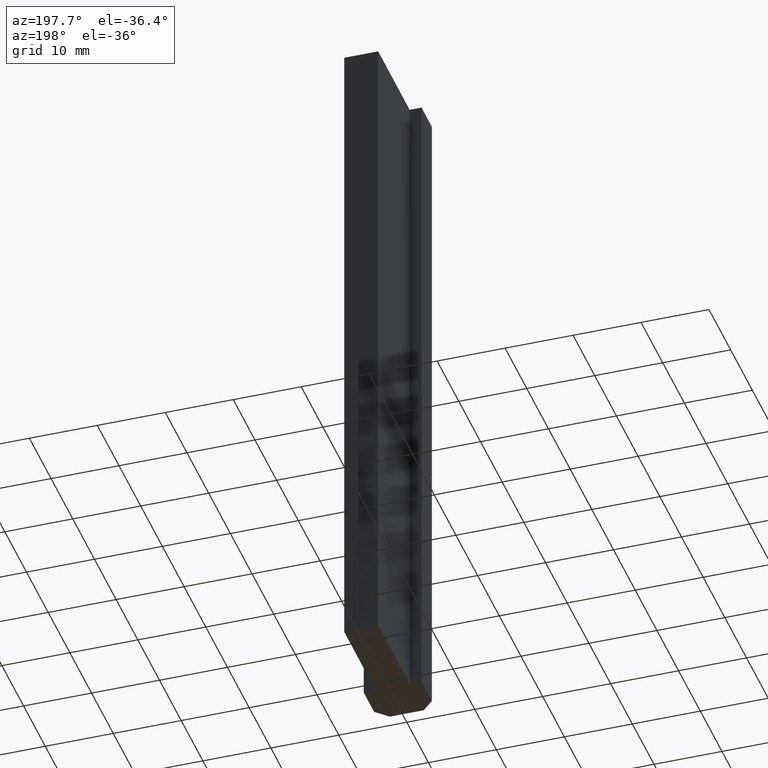
[diagram: clean part render]
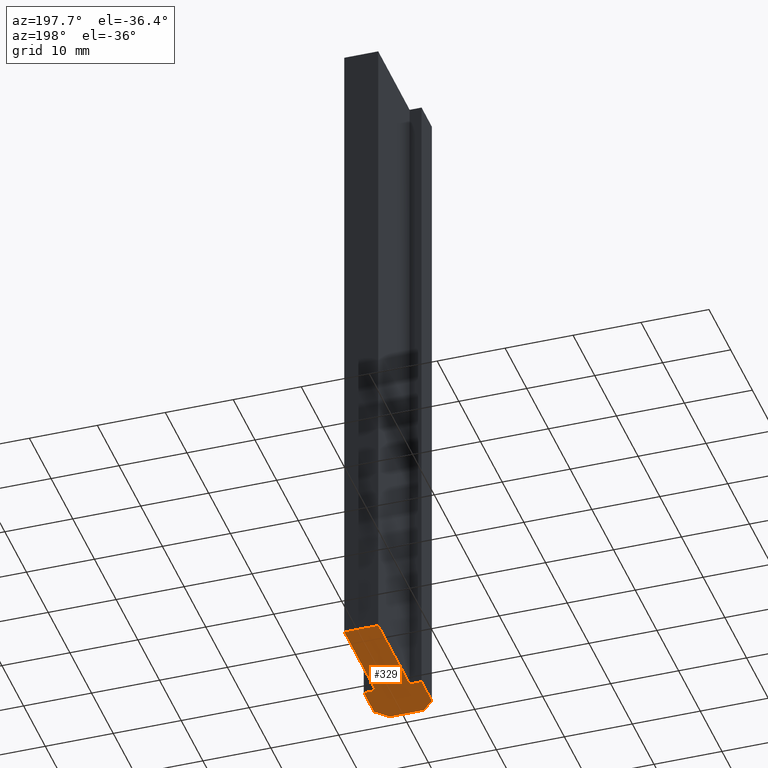
[diagram: same view with one face highlighted and labeled with its STEP entity id]
A machine part, auxiliary view. The second image highlights one B-rep face of the part: STEP entity #329.
In plain terms, the highlighted planar face has unit normal (0, 0, 1).
Its self-contained STEP definition (entity closure, byte-faithful):
#7=CARTESIAN_POINT('',(2.499999999989996,6.499999999974079,0.0));
#8=VERTEX_POINT('',#7);
#9=CARTESIAN_POINT('',(2.499999999989996,20.999999999915872,0.0));
#10=VERTEX_POINT('',#9);
#11=CARTESIAN_POINT('',(2.499999999989996,6.499999999973861,0.0));
#12=DIRECTION('',(0.0,1.0,0.0));
#13=VECTOR('',#12,14.499999999942011);
#14=LINE('',#11,#13);
#15=EDGE_CURVE('',#8,#10,#14,.T.);
#47=CARTESIAN_POINT('',(-2.499999999989996,20.999999999915872,0.0));
#48=VERTEX_POINT('',#47);
#49=CARTESIAN_POINT('',(2.499999999990005,20.999999999915872,0.0));
#50=DIRECTION('',(-1.0,0.0,0.0));
#51=VECTOR('',#50,4.999999999980001);
#52=LINE('',#49,#51);
#53=EDGE_CURVE('',#10,#48,#52,.T.);
#78=CARTESIAN_POINT('',(-2.499999999989541,6.499999999974079,0.0));
#79=VERTEX_POINT('',#78);
#80=CARTESIAN_POINT('',(-2.499999999989996,20.999999999916056,0.0));
#81=DIRECTION('',(0.0,-1.0,0.0));
#82=VECTOR('',#81,14.499999999941977);
#83=LINE('',#80,#82);
#84=EDGE_CURVE('',#48,#79,#83,.T.);
#109=CARTESIAN_POINT('',(-4.249999999982720,6.499999999974079,0.0));
#110=VERTEX_POINT('',#109);
#111=CARTESIAN_POINT('',(-2.499999999989726,6.499999999974079,0.0));
#112=DIRECTION('',(-1.0,0.0,0.0));
#113=VECTOR('',#112,1.749999999992993);
#114=LINE('',#111,#113);
#115=EDGE_CURVE('',#79,#110,#114,.T.);
#140=CARTESIAN_POINT('',(-4.249999999983174,1.749999999993179,0.0));
#141=VERTEX_POINT('',#140);
#142=CARTESIAN_POINT('',(-4.249999999982720,6.499999999974201,0.0));
#143=DIRECTION('',(0.0,-1.0,0.0));
#144=VECTOR('',#143,4.749999999981022);
#145=LINE('',#142,#144);
#146=EDGE_CURVE('',#110,#141,#145,.T.);
#171=CARTESIAN_POINT('',(-2.499999999989996,0.0,0.0));
#172=VERTEX_POINT('',#171);
#173=CARTESIAN_POINT('',(-4.249999999983007,1.749999999993011,0.0));
#174=DIRECTION('',(0.707106781186548,-0.707106781186547,0.0));
#175=VECTOR('',#174,2.474873734143033);
#176=LINE('',#173,#175);
#177=EDGE_CURVE('',#141,#172,#176,.T.);
#202=CARTESIAN_POINT('',(2.499999999989996,0.0,0.0));
#203=VERTEX_POINT('',#202);
#204=CARTESIAN_POINT('',(-2.499999999990005,0.0,0.0));
#205=DIRECTION('',(1.0,0.0,0.0));
#206=VECTOR('',#205,4.999999999980001);
#207=LINE('',#204,#206);
#208=EDGE_CURVE('',#172,#203,#207,.T.);
#233=CARTESIAN_POINT('',(4.249999999983174,1.749999999993179,0.0));
#234=VERTEX_POINT('',#233);
#235=CARTESIAN_POINT('',(2.499999999990163,1.674216E-013,0.0));
#236=DIRECTION('',(0.707106781186547,0.707106781186547,0.0));
#237=VECTOR('',#236,2.474873734143033);
#238=LINE('',#235,#237);
#239=EDGE_CURVE('',#203,#234,#238,.T.);
#264=CARTESIAN_POINT('',(4.249999999983174,6.499999999974079,0.0));
#265=VERTEX_POINT('',#264);
#266=CARTESIAN_POINT('',(4.249999999983174,1.749999999993057,0.0));
#267=DIRECTION('',(0.0,1.0,0.0));
#268=VECTOR('',#267,4.749999999981022);
#269=LINE('',#266,#268);
#270=EDGE_CURVE('',#234,#265,#269,.T.);
#295=CARTESIAN_POINT('',(4.249999999983007,6.499999999974079,0.0));
#296=DIRECTION('',(-1.0,0.0,0.0));
#297=VECTOR('',#296,1.749999999993011);
#298=LINE('',#295,#297);
#299=EDGE_CURVE('',#265,#8,#298,.T.);
#312=CARTESIAN_POINT('',(-5.100004733335027,-2.100004733335027,0.0));
#313=DIRECTION('',(0.0,0.0,1.0));
#314=DIRECTION('',(1.0,0.0,0.0));
#315=AXIS2_PLACEMENT_3D('',#312,#313,#314);
#316=PLANE('',#315);
#317=ORIENTED_EDGE('',*,*,#299,.F.);
#318=ORIENTED_EDGE('',*,*,#270,.F.);
#319=ORIENTED_EDGE('',*,*,#239,.F.);
#320=ORIENTED_EDGE('',*,*,#208,.F.);
#321=ORIENTED_EDGE('',*,*,#177,.F.);
#322=ORIENTED_EDGE('',*,*,#146,.F.);
#323=ORIENTED_EDGE('',*,*,#115,.F.);
#324=ORIENTED_EDGE('',*,*,#84,.F.);
#325=ORIENTED_EDGE('',*,*,#53,.F.);
#326=ORIENTED_EDGE('',*,*,#15,.F.);
#327=EDGE_LOOP('',(#317,#318,#319,#320,#321,#322,#323,#324,#325,#326));
#328=FACE_OUTER_BOUND('',#327,.T.);
#329=ADVANCED_FACE('',(#328),#316,.F.);